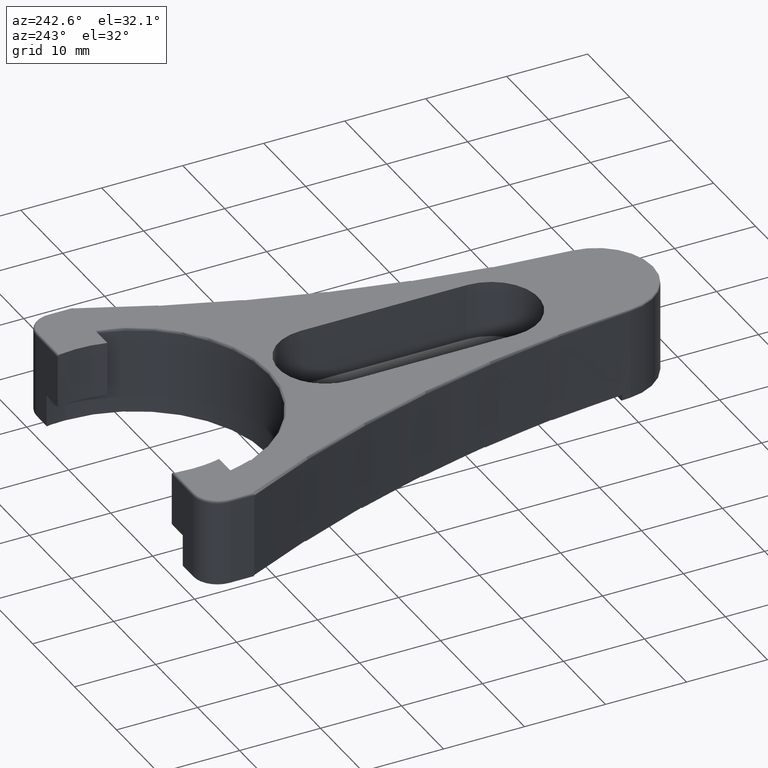
[diagram: clean part render]
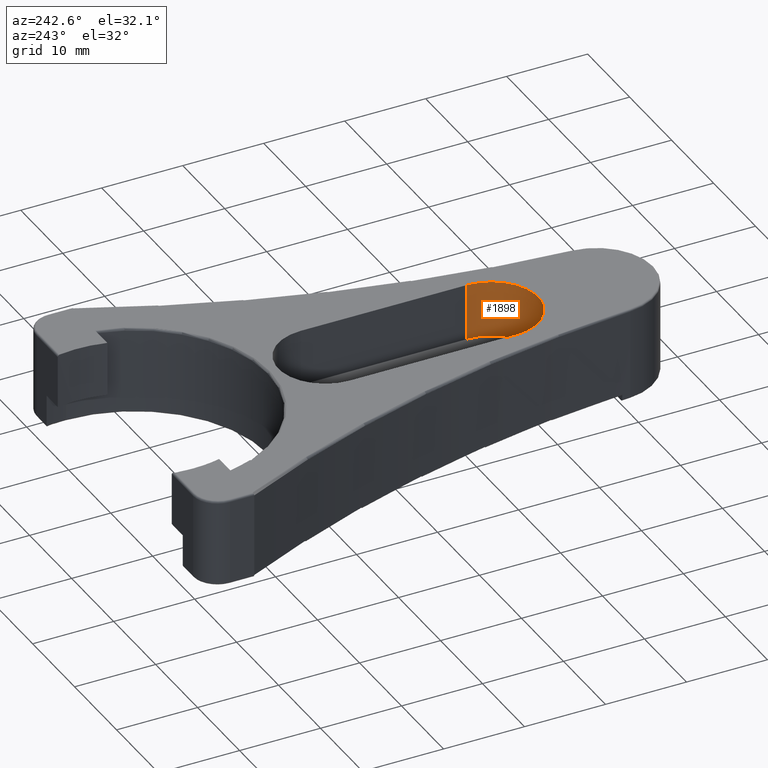
[diagram: same view with one face highlighted and labeled with its STEP entity id]
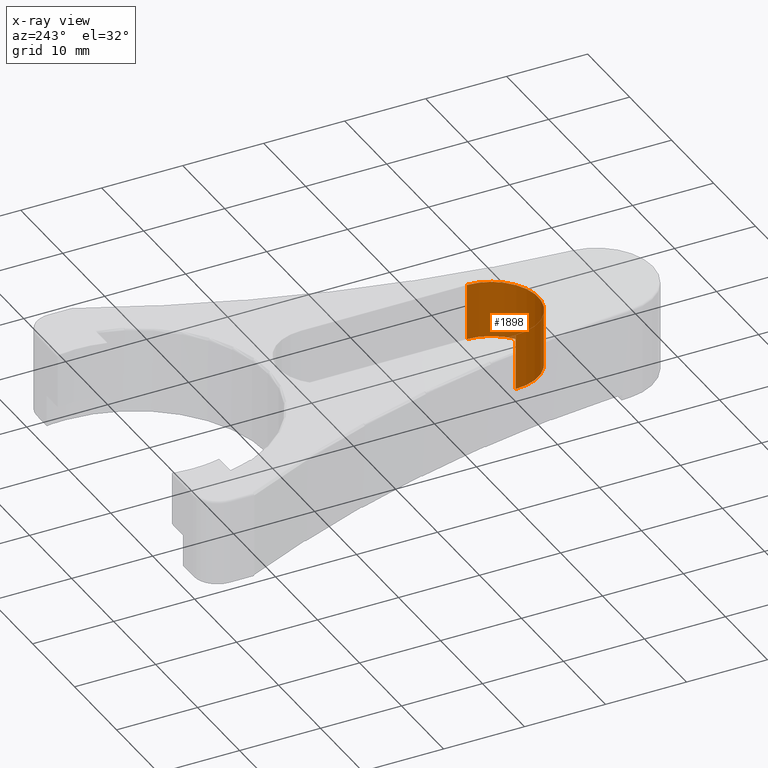
[diagram: x-ray of the same camera — body ghosted, the highlighted face saturated]
A machine part, auxiliary view. The second image highlights one B-rep face of the part: STEP entity #1898.
The next image is the same camera in x-ray: the body ghosted, the highlighted face saturated — about 0% of this face is hidden behind the body in this view.
In plain terms, the highlighted cylindrical surface (partial cylindrical patch) has radius 5.8 mm, axis along (-0, -0, 1).
Its self-contained STEP definition (entity closure, byte-faithful):
#17 = EDGE_CURVE ( 'NONE', #1054, #592, #1543, .T. ) ;
#38 = ORIENTED_EDGE ( 'NONE', *, *, #1845, .F. ) ;
#132 = ORIENTED_EDGE ( 'NONE', *, *, #1199, .T. ) ;
#137 = CARTESIAN_POINT ( 'NONE',  ( -5.800000000000010500, 13.00000000000078900, 10.80000000000000100 ) ) ;
#292 = CARTESIAN_POINT ( 'NONE',  ( 0.0000000000000000000, 13.00000000000078900, 3.800000000000000300 ) ) ;
#327 = AXIS2_PLACEMENT_3D ( 'NONE', #292, #1504, #462 ) ;
#367 = FACE_OUTER_BOUND ( 'NONE', #1034, .T. ) ;
#389 = AXIS2_PLACEMENT_3D ( 'NONE', #918, #1867, #1235 ) ;
#462 = DIRECTION ( 'NONE',  ( 1.000000000000000000, 0.0000000000000000000, 0.0000000000000000000 ) ) ;
#476 = VECTOR ( 'NONE', #1741, 1000.000000000000000 ) ;
#544 = ORIENTED_EDGE ( 'NONE', *, *, #1043, .F. ) ;
#560 = CARTESIAN_POINT ( 'NONE',  ( -5.800000000000010500, 13.00000000000078900, 3.800000000000000300 ) ) ;
#592 = VERTEX_POINT ( 'NONE', #877 ) ;
#653 = CARTESIAN_POINT ( 'NONE',  ( 0.0000000000000000000, 13.00000000000078900, 10.80000000000000100 ) ) ;
#678 = LINE ( 'NONE', #952, #1854 ) ;
#736 = ORIENTED_EDGE ( 'NONE', *, *, #17, .T. ) ;
#751 = AXIS2_PLACEMENT_3D ( 'NONE', #653, #1109, #1894 ) ;
#877 = CARTESIAN_POINT ( 'NONE',  ( 5.800000000000011400, 13.00000000000078900, 10.80000000000000100 ) ) ;
#918 = CARTESIAN_POINT ( 'NONE',  ( 0.0000000000000000000, 13.00000000000078900, 3.800000000000000300 ) ) ;
#952 = CARTESIAN_POINT ( 'NONE',  ( 5.800000000000011400, 13.00000000000078900, 3.800000000000000300 ) ) ;
#1034 = EDGE_LOOP ( 'NONE', ( #736, #544, #38, #132 ) ) ;
#1043 = EDGE_CURVE ( 'NONE', #1681, #592, #678, .T. ) ;
#1054 = VERTEX_POINT ( 'NONE', #137 ) ;
#1100 = CARTESIAN_POINT ( 'NONE',  ( -5.800000000000010500, 13.00000000000078900, 3.800000000000000300 ) ) ;
#1109 = DIRECTION ( 'NONE',  ( 0.0000000000000000000, 0.0000000000000000000, 1.000000000000000000 ) ) ;
#1199 = EDGE_CURVE ( 'NONE', #1516, #1054, #1304, .T. ) ;
#1231 = CIRCLE ( 'NONE', #327, 5.800000000000011400 ) ;
#1235 = DIRECTION ( 'NONE',  ( 1.000000000000000000, 0.0000000000000000000, 0.0000000000000000000 ) ) ;
#1256 = CYLINDRICAL_SURFACE ( 'NONE', #389, 5.800000000000011400 ) ;
#1304 = LINE ( 'NONE', #1100, #476 ) ;
#1504 = DIRECTION ( 'NONE',  ( 0.0000000000000000000, 0.0000000000000000000, 1.000000000000000000 ) ) ;
#1514 = DIRECTION ( 'NONE',  ( -0.0000000000000000000, -0.0000000000000000000, 1.000000000000000000 ) ) ;
#1516 = VERTEX_POINT ( 'NONE', #560 ) ;
#1543 = CIRCLE ( 'NONE', #751, 5.800000000000011400 ) ;
#1637 = CARTESIAN_POINT ( 'NONE',  ( 5.800000000000011400, 13.00000000000078900, 3.800000000000000300 ) ) ;
#1681 = VERTEX_POINT ( 'NONE', #1637 ) ;
#1741 = DIRECTION ( 'NONE',  ( -0.0000000000000000000, -0.0000000000000000000, 1.000000000000000000 ) ) ;
#1845 = EDGE_CURVE ( 'NONE', #1516, #1681, #1231, .T. ) ;
#1854 = VECTOR ( 'NONE', #1514, 1000.000000000000000 ) ;
#1867 = DIRECTION ( 'NONE',  ( -0.0000000000000000000, -0.0000000000000000000, 1.000000000000000000 ) ) ;
#1894 = DIRECTION ( 'NONE',  ( 1.000000000000000000, 0.0000000000000000000, 0.0000000000000000000 ) ) ;
#1898 = ADVANCED_FACE ( 'NONE', ( #367 ), #1256, .F. ) ;